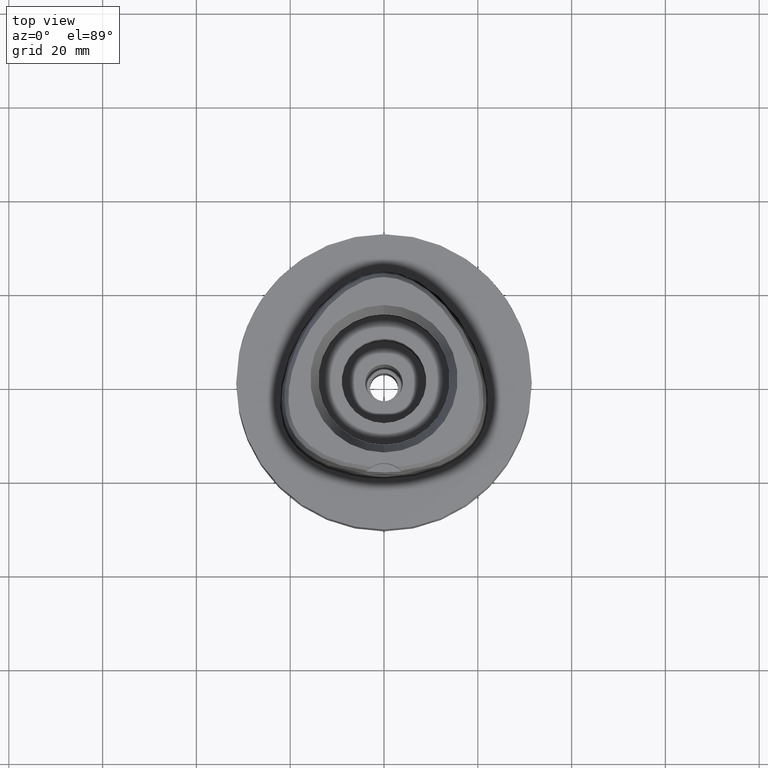
[diagram: clean part render]
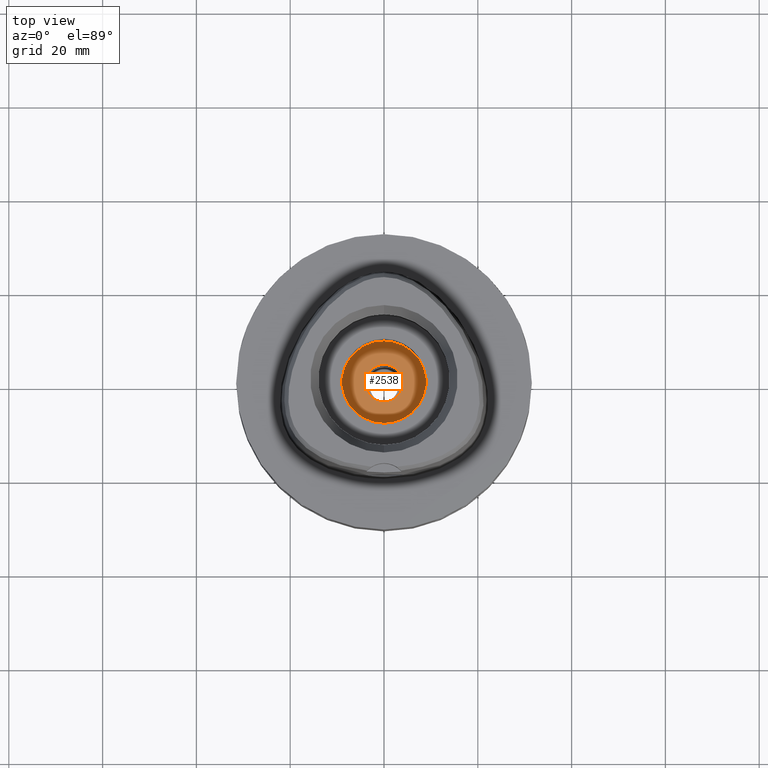
[diagram: same view with one face highlighted and labeled with its STEP entity id]
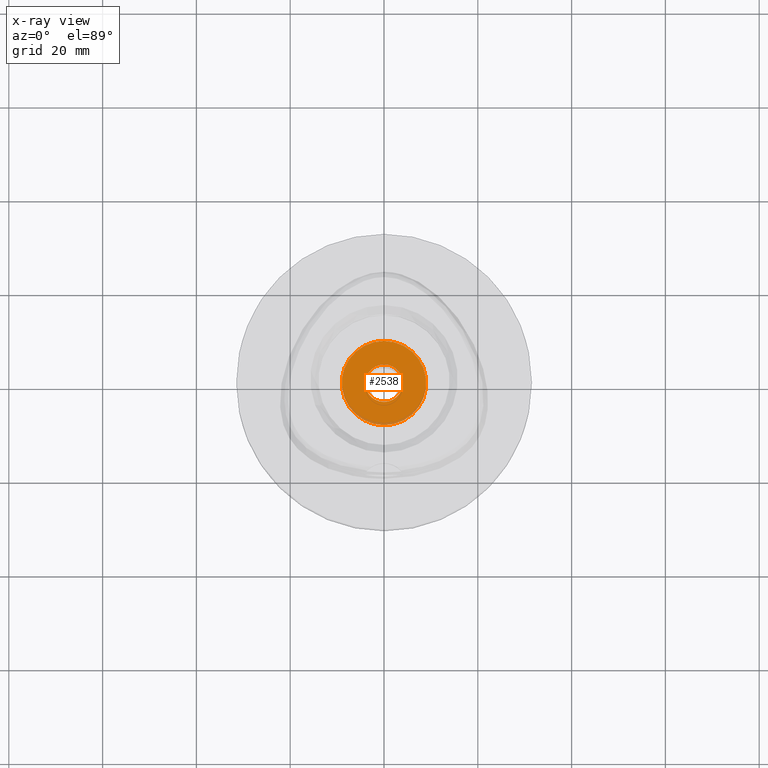
[diagram: x-ray of the same camera — body ghosted, the highlighted face saturated]
A machine part, top view. The second image highlights one B-rep face of the part: STEP entity #2538.
The next image is the same camera in x-ray: the body ghosted, the highlighted face saturated — about 4% of this face is hidden behind the body in this view.
In plain terms, the highlighted planar face has unit normal (0, 0, -1).
Its self-contained STEP definition (entity closure, byte-faithful):
#676=CARTESIAN_POINT('',(0.E0,0.E0,-1.6E1));
#677=DIRECTION('',(0.E0,0.E0,-1.E0));
#678=DIRECTION('',(0.E0,-1.E0,0.E0));
#679=AXIS2_PLACEMENT_3D('',#676,#677,#678);
#684=CARTESIAN_POINT('',(0.E0,0.E0,-1.6E1));
#685=DIRECTION('',(0.E0,0.E0,-1.E0));
#686=DIRECTION('',(0.E0,1.E0,0.E0));
#687=AXIS2_PLACEMENT_3D('',#684,#685,#686);
#692=CARTESIAN_POINT('',(0.E0,0.E0,-1.6E1));
#693=DIRECTION('',(0.E0,0.E0,1.E0));
#694=DIRECTION('',(0.E0,-1.E0,0.E0));
#695=AXIS2_PLACEMENT_3D('',#692,#693,#694);
#700=CARTESIAN_POINT('',(0.E0,0.E0,-1.6E1));
#701=DIRECTION('',(0.E0,0.E0,1.E0));
#702=DIRECTION('',(0.E0,1.E0,0.E0));
#703=AXIS2_PLACEMENT_3D('',#700,#701,#702);
#1524=CARTESIAN_POINT('',(0.E0,4.E0,-1.6E1));
#1525=VERTEX_POINT('',#1524);
#1526=CARTESIAN_POINT('',(0.E0,-4.E0,-1.6E1));
#1527=VERTEX_POINT('',#1526);
#1528=CARTESIAN_POINT('',(0.E0,-9.E0,-1.6E1));
#1529=CARTESIAN_POINT('',(0.E0,9.E0,-1.6E1));
#1530=VERTEX_POINT('',#1528);
#1531=VERTEX_POINT('',#1529);
#2523=CARTESIAN_POINT('',(0.E0,0.E0,-1.6E1));
#2524=DIRECTION('',(0.E0,0.E0,-1.E0));
#2525=DIRECTION('',(0.E0,-1.E0,0.E0));
#2526=AXIS2_PLACEMENT_3D('',#2523,#2524,#2525);
#2527=PLANE('',#2526);
#2529=ORIENTED_EDGE('',*,*,#2528,.T.);
#2531=ORIENTED_EDGE('',*,*,#2530,.T.);
#2532=EDGE_LOOP('',(#2529,#2531));
#2533=FACE_OUTER_BOUND('',#2532,.F.);
#2534=ORIENTED_EDGE('',*,*,#2516,.T.);
#2535=ORIENTED_EDGE('',*,*,#2505,.T.);
#2536=EDGE_LOOP('',(#2534,#2535));
#2537=FACE_BOUND('',#2536,.F.);
#680=CIRCLE('',#679,9.E0);
#688=CIRCLE('',#687,9.E0);
#696=CIRCLE('',#695,4.E0);
#704=CIRCLE('',#703,4.E0);
#2505=EDGE_CURVE('',#1525,#1527,#704,.T.);
#2516=EDGE_CURVE('',#1527,#1525,#696,.T.);
#2528=EDGE_CURVE('',#1530,#1531,#680,.T.);
#2530=EDGE_CURVE('',#1531,#1530,#688,.T.);
#2538=ADVANCED_FACE('',(#2533,#2537),#2527,.F.);